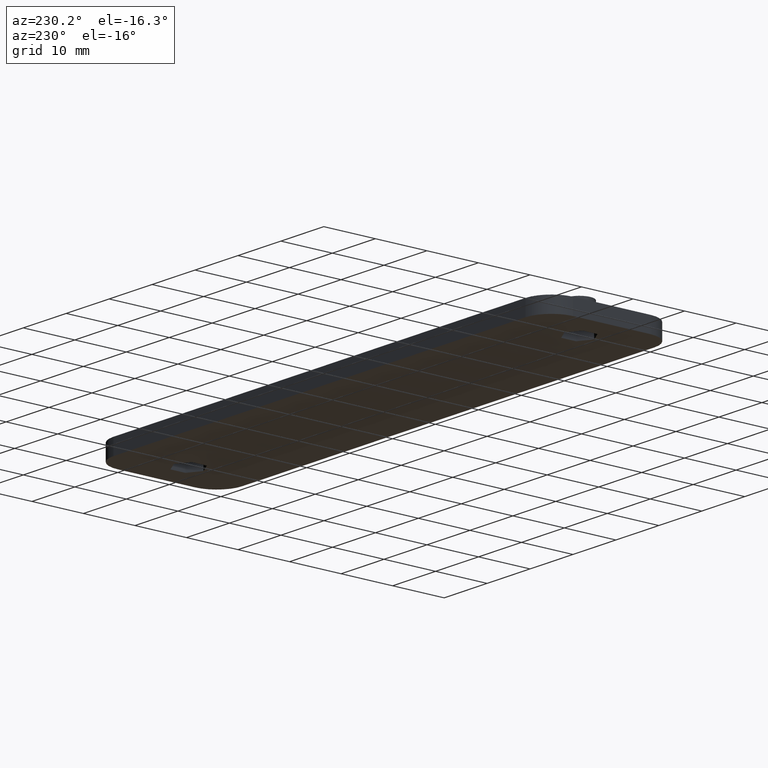
[diagram: clean part render]
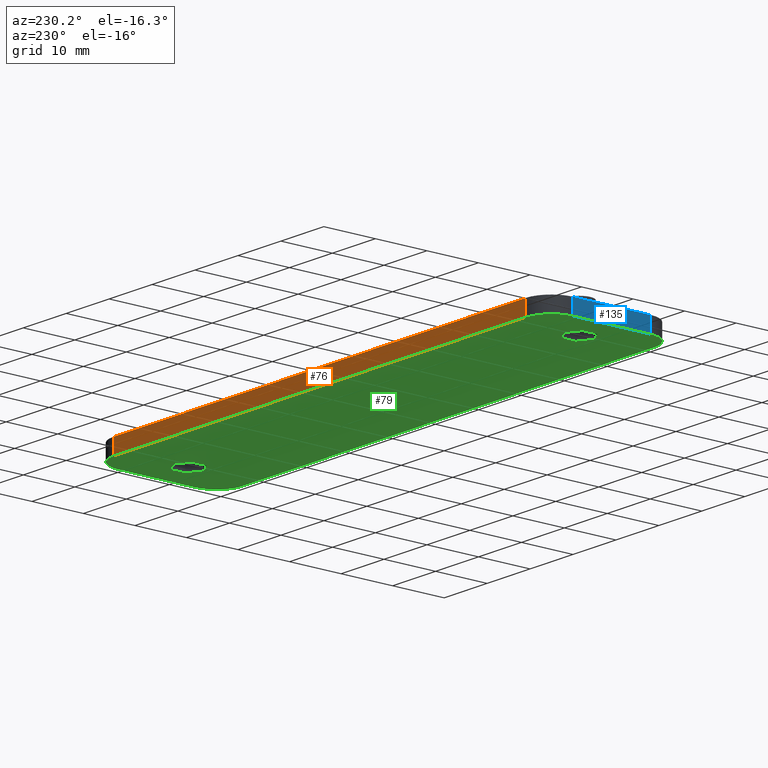
[diagram: same view with three faces highlighted in distinct colors, each labeled with its STEP entity id]
A machine part, auxiliary view with three faces highlighted in distinct colors.
Their STEP definitions:

[orange] entity #76 — the highlighted planar face has unit normal (0, -1, 0).
#76 = ADVANCED_FACE( '', ( #146 ), #147, .F. );
#146 = FACE_OUTER_BOUND( '', #279, .T. );
#147 = PLANE( '', #280 );
#279 = EDGE_LOOP( '', ( #444, #445, #446, #447 ) );
#280 = AXIS2_PLACEMENT_3D( '', #448, #449, #450 );
#444 = ORIENTED_EDGE( '', *, *, #920, .F. );
#445 = ORIENTED_EDGE( '', *, *, #921, .F. );
#446 = ORIENTED_EDGE( '', *, *, #922, .F. );
#447 = ORIENTED_EDGE( '', *, *, #896, .T. );
#448 = CARTESIAN_POINT( '', ( -65.4999999999999, 12.5000000000000, -4.23987423945824E-014 ) );
#449 = DIRECTION( '', ( 7.88860905221011E-031, -1.00000000000000, 6.12303176911189E-017 ) );
#450 = DIRECTION( '', ( -1.00000000000000, -7.88860905221011E-031, 4.83022038407861E-047 ) );
#896 = EDGE_CURVE( '', #1059, #1057, #1060, .T. );
#920 = EDGE_CURVE( '', #1106, #1057, #1107, .T. );
#921 = EDGE_CURVE( '', #1108, #1106, #1109, .T. );
#922 = EDGE_CURVE( '', #1059, #1108, #1110, .T. );
#1057 = VERTEX_POINT( '', #1317 );
#1059 = VERTEX_POINT( '', #1319 );
#1060 = LINE( '', #1320, #1321 );
#1106 = VERTEX_POINT( '', #1384 );
#1107 = LINE( '', #1385, #1386 );
#1108 = VERTEX_POINT( '', #1387 );
#1109 = LINE( '', #1388, #1389 );
#1110 = LINE( '', #1390, #1391 );
#1317 = CARTESIAN_POINT( '', ( 48.0000000000000, 12.5000000000000, 2.99999999999990 ) );
#1319 = CARTESIAN_POINT( '', ( -48.0000000000000, 12.5000000000000, 2.99999999999996 ) );
#1320 = CARTESIAN_POINT( '', ( -65.4999999999999, 12.5000000000000, 2.99999999999996 ) );
#1321 = VECTOR( '', #1676, 1000.00000000000 );
#1384 = CARTESIAN_POINT( '', ( 48.0000000000000, 12.5000000000000, -7.01543180102113E-014 ) );
#1385 = CARTESIAN_POINT( '', ( 48.0000000000000, 12.5000000000000, -92.8338482168494 ) );
#1386 = VECTOR( '', #1712, 1000.00000000000 );
#1387 = CARTESIAN_POINT( '', ( -48.0000000000000, 12.5000000000000, -4.23987423945824E-014 ) );
#1388 = CARTESIAN_POINT( '', ( -65.4999999999999, 12.5000000000000, -4.23987423945824E-014 ) );
#1389 = VECTOR( '', #1713, 1000.00000000000 );
#1390 = CARTESIAN_POINT( '', ( -48.0000000000000, 12.5000000000000, 111.868624669363 ) );
#1391 = VECTOR( '', #1714, 1000.00000000000 );
#1676 = DIRECTION( '', ( 1.00000000000000, -3.15544362088405E-030, 1.93208815363145E-046 ) );
#1712 = DIRECTION( '', ( 1.60751816480225E-016, 1.81794180051289E-016, 1.00000000000000 ) );
#1713 = DIRECTION( '', ( 1.00000000000000, -3.15544362088405E-030, 1.93208815363145E-046 ) );
#1714 = DIRECTION( '', ( 1.60751816480226E-016, -1.81794180051289E-016, -1.00000000000000 ) );

[blue] entity #135 — the highlighted planar face has unit normal (-1, -0, -0).
#135 = ADVANCED_FACE( '', ( #268 ), #269, .T. );
#268 = FACE_OUTER_BOUND( '', #401, .T. );
#269 = PLANE( '', #402 );
#401 = EDGE_LOOP( '', ( #875, #876, #877, #878 ) );
#402 = AXIS2_PLACEMENT_3D( '', #879, #880, #881 );
#875 = ORIENTED_EDGE( '', *, *, #951, .F. );
#876 = ORIENTED_EDGE( '', *, *, #898, .T. );
#877 = ORIENTED_EDGE( '', *, *, #952, .T. );
#878 = ORIENTED_EDGE( '', *, *, #944, .F. );
#879 = CARTESIAN_POINT( '', ( -53.0000000000000, -7.50000000000000, 111.868624669363 ) );
#880 = DIRECTION( '', ( -1.00000000000000, -3.93715391700347E-032, -1.60751816480226E-016 ) );
#881 = DIRECTION( '', ( -1.01477945012568E-032, 1.00000000000000, -1.81794180051289E-016 ) );
#898 = EDGE_CURVE( '', #1063, #1061, #1064, .T. );
#944 = EDGE_CURVE( '', #1150, #1152, #1153, .T. );
#951 = EDGE_CURVE( '', #1063, #1150, #1160, .T. );
#952 = EDGE_CURVE( '', #1061, #1152, #1161, .T. );
#1061 = VERTEX_POINT( '', #1322 );
#1063 = VERTEX_POINT( '', #1324 );
#1064 = LINE( '', #1325, #1326 );
#1150 = VERTEX_POINT( '', #1450 );
#1152 = VERTEX_POINT( '', #1452 );
#1153 = LINE( '', #1453, #1454 );
#1160 = LINE( '', #1465, #1466 );
#1161 = LINE( '', #1467, #1468 );
#1322 = CARTESIAN_POINT( '', ( -53.0000000000000, 7.49999999999999, 2.99999999999996 ) );
#1324 = CARTESIAN_POINT( '', ( -53.0000000000000, -7.50000000000002, 2.99999999999996 ) );
#1325 = CARTESIAN_POINT( '', ( -53.0000000000000, 8.85730833295739E-015, 2.99999999999996 ) );
#1326 = VECTOR( '', #1680, 1000.00000000000 );
#1450 = CARTESIAN_POINT( '', ( -53.0000000000000, -7.50000000000002, -4.11741360407600E-014 ) );
#1452 = CARTESIAN_POINT( '', ( -53.0000000000000, 7.49999999999999, -4.20925908061268E-014 ) );
#1453 = CARTESIAN_POINT( '', ( -53.0000000000000, 8.67361737988403E-015, -4.16333634234434E-014 ) );
#1454 = VECTOR( '', #1740, 1000.00000000000 );
#1465 = CARTESIAN_POINT( '', ( -53.0000000000000, -7.50000000000000, 111.868624669363 ) );
#1466 = VECTOR( '', #1751, 1000.00000000000 );
#1467 = CARTESIAN_POINT( '', ( -53.0000000000000, 7.50000000000001, 111.868624669363 ) );
#1468 = VECTOR( '', #1752, 1000.00000000000 );
#1680 = DIRECTION( '', ( -2.95286543775261E-032, 1.00000000000000, -6.12303176911189E-017 ) );
#1740 = DIRECTION( '', ( -2.95286543775261E-032, 1.00000000000000, -6.12303176911189E-017 ) );
#1751 = DIRECTION( '', ( 1.60751816480226E-016, -1.81794180051289E-016, -1.00000000000000 ) );
#1752 = DIRECTION( '', ( 1.60751816480226E-016, -1.81794180051289E-016, -1.00000000000000 ) );

[green] entity #79 — the highlighted planar face has unit normal (0, -0, -1).
#79 = ADVANCED_FACE( '', ( #152, #153, #154 ), #155, .T. );
#152 = FACE_BOUND( '', #285, .T. );
#153 = FACE_BOUND( '', #286, .T. );
#154 = FACE_OUTER_BOUND( '', #287, .T. );
#155 = PLANE( '', #288 );
#285 = EDGE_LOOP( '', ( #465, #466, #467, #468, #469, #470 ) );
#286 = EDGE_LOOP( '', ( #471, #472, #473, #474, #475, #476 ) );
#287 = EDGE_LOOP( '', ( #477, #478, #479, #480, #481, #482, #483, #484 ) );
#288 = AXIS2_PLACEMENT_3D( '', #485, #486, #487 );
#465 = ORIENTED_EDGE( '', *, *, #928, .F. );
#466 = ORIENTED_EDGE( '', *, *, #929, .F. );
#467 = ORIENTED_EDGE( '', *, *, #930, .F. );
#468 = ORIENTED_EDGE( '', *, *, #931, .F. );
#469 = ORIENTED_EDGE( '', *, *, #932, .F. );
#470 = ORIENTED_EDGE( '', *, *, #933, .F. );
#471 = ORIENTED_EDGE( '', *, *, #934, .F. );
#472 = ORIENTED_EDGE( '', *, *, #935, .F. );
#473 = ORIENTED_EDGE( '', *, *, #936, .F. );
#474 = ORIENTED_EDGE( '', *, *, #937, .F. );
#475 = ORIENTED_EDGE( '', *, *, #938, .F. );
#476 = ORIENTED_EDGE( '', *, *, #939, .F. );
#477 = ORIENTED_EDGE( '', *, *, #940, .T. );
#478 = ORIENTED_EDGE( '', *, *, #941, .T. );
#479 = ORIENTED_EDGE( '', *, *, #942, .T. );
#480 = ORIENTED_EDGE( '', *, *, #943, .T. );
#481 = ORIENTED_EDGE( '', *, *, #944, .T. );
#482 = ORIENTED_EDGE( '', *, *, #945, .T. );
#483 = ORIENTED_EDGE( '', *, *, #921, .T. );
#484 = ORIENTED_EDGE( '', *, *, #946, .T. );
#485 = CARTESIAN_POINT( '', ( 65.5000000000000, 8.67361737988403E-015, -4.16333634234434E-014 ) );
#486 = DIRECTION( '', ( 4.59177480789956E-047, -6.12303176911189E-017, -1.00000000000000 ) );
#487 = DIRECTION( '', ( 5.39030083589187E-015, 1.00000000000000, -6.12303176911189E-017 ) );
#921 = EDGE_CURVE( '', #1108, #1106, #1109, .T. );
#928 = EDGE_CURVE( '', #1119, #1120, #1121, .T. );
#929 = EDGE_CURVE( '', #1122, #1119, #1123, .T. );
#930 = EDGE_CURVE( '', #1124, #1122, #1125, .T. );
#931 = EDGE_CURVE( '', #1126, #1124, #1127, .T. );
#932 = EDGE_CURVE( '', #1128, #1126, #1129, .T. );
#933 = EDGE_CURVE( '', #1120, #1128, #1130, .T. );
#934 = EDGE_CURVE( '', #1131, #1132, #1133, .T. );
#935 = EDGE_CURVE( '', #1134, #1131, #1135, .T. );
#936 = EDGE_CURVE( '', #1136, #1134, #1137, .T. );
#937 = EDGE_CURVE( '', #1138, #1136, #1139, .T. );
#938 = EDGE_CURVE( '', #1140, #1138, #1141, .T. );
#939 = EDGE_CURVE( '', #1132, #1140, #1142, .T. );
#940 = EDGE_CURVE( '', #1143, #1144, #1145, .T. );
#941 = EDGE_CURVE( '', #1144, #1146, #1147, .T. );
#942 = EDGE_CURVE( '', #1146, #1148, #1149, .T. );
#943 = EDGE_CURVE( '', #1148, #1150, #1151, .T. );
#944 = EDGE_CURVE( '', #1150, #1152, #1153, .T. );
#945 = EDGE_CURVE( '', #1152, #1108, #1154, .T. );
#946 = EDGE_CURVE( '', #1106, #1143, #1155, .T. );
#1106 = VERTEX_POINT( '', #1384 );
#1108 = VERTEX_POINT( '', #1387 );
#1109 = LINE( '', #1388, #1389 );
#1119 = VERTEX_POINT( '', #1405 );
#1120 = VERTEX_POINT( '', #1406 );
#1121 = LINE( '', #1407, #1408 );
#1122 = VERTEX_POINT( '', #1409 );
#1123 = LINE( '', #1410, #1411 );
#1124 = VERTEX_POINT( '', #1412 );
#1125 = LINE( '', #1413, #1414 );
#1126 = VERTEX_POINT( '', #1415 );
#1127 = LINE( '', #1416, #1417 );
#1128 = VERTEX_POINT( '', #1418 );
#1129 = LINE( '', #1419, #1420 );
#1130 = LINE( '', #1421, #1422 );
#1131 = VERTEX_POINT( '', #1423 );
#1132 = VERTEX_POINT( '', #1424 );
#1133 = LINE( '', #1425, #1426 );
#1134 = VERTEX_POINT( '', #1427 );
#1135 = LINE( '', #1428, #1429 );
#1136 = VERTEX_POINT( '', #1430 );
#1137 = LINE( '', #1431, #1432 );
#1138 = VERTEX_POINT( '', #1433 );
#1139 = LINE( '', #1434, #1435 );
#1140 = VERTEX_POINT( '', #1436 );
#1141 = LINE( '', #1437, #1438 );
#1142 = LINE( '', #1439, #1440 );
#1143 = VERTEX_POINT( '', #1441 );
#1144 = VERTEX_POINT( '', #1442 );
#1145 = LINE( '', #1443, #1444 );
#1146 = VERTEX_POINT( '', #1445 );
#1147 = CIRCLE( '', #1446, 4.99999999999999 );
#1148 = VERTEX_POINT( '', #1447 );
#1149 = LINE( '', #1448, #1449 );
#1150 = VERTEX_POINT( '', #1450 );
#1151 = CIRCLE( '', #1451, 5.00000000000000 );
#1152 = VERTEX_POINT( '', #1452 );
#1153 = LINE( '', #1453, #1454 );
#1154 = CIRCLE( '', #1455, 5.00000000000000 );
#1155 = CIRCLE( '', #1456, 4.99999999999999 );
#1384 = CARTESIAN_POINT( '', ( 48.0000000000000, 12.5000000000000, -7.01543180102113E-014 ) );
#1387 = CARTESIAN_POINT( '', ( -48.0000000000000, 12.5000000000000, -4.23987423945824E-014 ) );
#1388 = CARTESIAN_POINT( '', ( -65.4999999999999, 12.5000000000000, -4.23987423945824E-014 ) );
#1389 = VECTOR( '', #1713, 1000.00000000000 );
#1405 = CARTESIAN_POINT( '', ( 45.5000000000001, 2.88675134594816, -2.79323323176366E-014 ) );
#1406 = CARTESIAN_POINT( '', ( 48.0000000000001, 1.44337567297410, -2.78439539666328E-014 ) );
#1407 = CARTESIAN_POINT( '', ( 50.5000000000002, 1.40946282423116E-014, -2.77555756156289E-014 ) );
#1408 = VECTOR( '', #1720, 1000.00000000000 );
#1409 = CARTESIAN_POINT( '', ( 43.0000000000001, 1.44337567297408, -2.78439539666328E-014 ) );
#1410 = CARTESIAN_POINT( '', ( 48.0000000000001, 4.33012701892223, -2.80207106686404E-014 ) );
#1411 = VECTOR( '', #1721, 1000.00000000000 );
#1412 = CARTESIAN_POINT( '', ( 43.0000000000001, -1.44337567297407, -2.76671972646251E-014 ) );
#1413 = CARTESIAN_POINT( '', ( 43.0000000000001, 1.36782946080771E-014, -2.77555756156289E-014 ) );
#1414 = VECTOR( '', #1722, 1000.00000000000 );
#1415 = CARTESIAN_POINT( '', ( 45.5000000000001, -2.88675134594813, -2.75788189136212E-014 ) );
#1416 = CARTESIAN_POINT( '', ( 48.0000000000001, -4.33012701892221, -2.74904405626174E-014 ) );
#1417 = VECTOR( '', #1723, 1000.00000000000 );
#1418 = CARTESIAN_POINT( '', ( 48.0000000000001, -1.44337567297406, -2.76671972646251E-014 ) );
#1419 = CARTESIAN_POINT( '', ( 50.5000000000001, 2.01048020158368E-014, -2.77555756156289E-014 ) );
#1420 = VECTOR( '', #1724, 1000.00000000000 );
#1421 = CARTESIAN_POINT( '', ( 48.0000000000001, 1.34007388519208E-014, -2.77555756156289E-014 ) );
#1422 = VECTOR( '', #1725, 1000.00000000000 );
#1423 = CARTESIAN_POINT( '', ( -45.5000000000001, 2.88675134594813, -2.79323323176366E-014 ) );
#1424 = CARTESIAN_POINT( '', ( -43.0000000000001, 1.44337567297406, -2.78439539666328E-014 ) );
#1425 = CARTESIAN_POINT( '', ( -40.5000000000001, -1.32699719143736E-014, -2.77555756156289E-014 ) );
#1426 = VECTOR( '', #1726, 1000.00000000000 );
#1427 = CARTESIAN_POINT( '', ( -48.0000000000001, 1.44337567297405, -2.78439539666327E-014 ) );
#1428 = CARTESIAN_POINT( '', ( -43.0000000000001, 4.33012701892220, -2.80207106686404E-014 ) );
#1429 = VECTOR( '', #1727, 1000.00000000000 );
#1430 = CARTESIAN_POINT( '', ( -48.0000000000001, -1.44337567297409, -2.76671972646251E-014 ) );
#1431 = CARTESIAN_POINT( '', ( -48.0000000000001, -1.25593979660721E-014, -2.77555756156289E-014 ) );
#1432 = VECTOR( '', #1728, 1000.00000000000 );
#1433 = CARTESIAN_POINT( '', ( -45.5000000000001, -2.88675134594816, -2.75788189136212E-014 ) );
#1434 = CARTESIAN_POINT( '', ( -43.0000000000001, -4.33012701892223, -2.74904405626174E-014 ) );
#1435 = VECTOR( '', #1729, 1000.00000000000 );
#1436 = CARTESIAN_POINT( '', ( -43.0000000000001, -1.44337567297409, -2.76671972646251E-014 ) );
#1437 = CARTESIAN_POINT( '', ( -40.5000000000001, -1.11100657145130E-014, -2.77555756156289E-014 ) );
#1438 = VECTOR( '', #1730, 1000.00000000000 );
#1439 = CARTESIAN_POINT( '', ( -43.0000000000001, -1.28369537222284E-014, -2.77555756156289E-014 ) );
#1440 = VECTOR( '', #1731, 1000.00000000000 );
#1441 = CARTESIAN_POINT( '', ( 53.0000000000000, 7.49999999999999, -6.98481664217557E-014 ) );
#1442 = CARTESIAN_POINT( '', ( 53.0000000000000, -7.50000000000001, -6.89297116563889E-014 ) );
#1443 = CARTESIAN_POINT( '', ( 53.0000000000000, 8.67361737988401E-015, -4.16333634234434E-014 ) );
#1444 = VECTOR( '', #1732, 1000.00000000000 );
#1445 = CARTESIAN_POINT( '', ( 48.0000000000000, -12.5000000000000, -9.63791356835622E-014 ) );
#1446 = AXIS2_PLACEMENT_3D( '', #1733, #1734, #1735 );
#1447 = CARTESIAN_POINT( '', ( -48.0000000000000, -12.5000000000000, -4.08679844523044E-014 ) );
#1448 = CARTESIAN_POINT( '', ( 65.5000000000001, -12.5000000000000, -4.08679844523044E-014 ) );
#1449 = VECTOR( '', #1736, 1000.00000000000 );
#1450 = CARTESIAN_POINT( '', ( -53.0000000000000, -7.50000000000002, -4.11741360407600E-014 ) );
#1451 = AXIS2_PLACEMENT_3D( '', #1737, #1738, #1739 );
#1452 = CARTESIAN_POINT( '', ( -53.0000000000000, 7.49999999999999, -4.20925908061268E-014 ) );
#1453 = CARTESIAN_POINT( '', ( -53.0000000000000, 8.67361737988403E-015, -4.16333634234434E-014 ) );
#1454 = VECTOR( '', #1740, 1000.00000000000 );
#1455 = AXIS2_PLACEMENT_3D( '', #1741, #1742, #1743 );
#1456 = AXIS2_PLACEMENT_3D( '', #1744, #1745, #1746 );
#1713 = DIRECTION( '', ( 1.00000000000000, -3.15544362088405E-030, 1.93208815363145E-046 ) );
#1720 = DIRECTION( '', ( 0.866025403784438, -0.500000000000001, 3.06151588455595E-017 ) );
#1721 = DIRECTION( '', ( 0.866025403784438, 0.500000000000001, -3.06151588455595E-017 ) );
#1722 = DIRECTION( '', ( -5.55111512312578E-017, 1.00000000000000, -6.12303176911189E-017 ) );
#1723 = DIRECTION( '', ( -0.866025403784438, 0.500000000000001, -3.06151588455595E-017 ) );
#1724 = DIRECTION( '', ( -0.866025403784438, -0.500000000000001, 3.06151588455595E-017 ) );
#1725 = DIRECTION( '', ( 2.77555756156289E-016, -1.00000000000000, 6.12303176911189E-017 ) );
#1726 = DIRECTION( '', ( 0.866025403784438, -0.500000000000001, 3.06151588455595E-017 ) );
#1727 = DIRECTION( '', ( 0.866025403784438, 0.500000000000001, -3.06151588455595E-017 ) );
#1728 = DIRECTION( '', ( -5.55111512312578E-017, 1.00000000000000, -6.12303176911189E-017 ) );
#1729 = DIRECTION( '', ( -0.866025403784438, 0.500000000000001, -3.06151588455595E-017 ) );
#1730 = DIRECTION( '', ( -0.866025403784438, -0.500000000000001, 3.06151588455595E-017 ) );
#1731 = DIRECTION( '', ( 2.77555756156289E-016, -1.00000000000000, 6.12303176911189E-017 ) );
#1732 = DIRECTION( '', ( 1.57772181044202E-030, -1.00000000000000, 6.12303176911189E-017 ) );
#1733 = CARTESIAN_POINT( '', ( 48.0000000000000, -7.50000000000001, -4.11741360407600E-014 ) );
#1734 = DIRECTION( '', ( 0.000000000000000, -6.12303176911189E-017, -1.00000000000000 ) );
#1735 = DIRECTION( '', ( 0.000000000000000, 1.00000000000000, -6.12303176911189E-017 ) );
#1736 = DIRECTION( '', ( -1.00000000000000, 2.36658271566303E-030, -1.44906611522358E-046 ) );
#1737 = CARTESIAN_POINT( '', ( -48.0000000000000, -7.50000000000002, -4.11741360407600E-014 ) );
#1738 = DIRECTION( '', ( 0.000000000000000, -6.12303176911189E-017, -1.00000000000000 ) );
#1739 = DIRECTION( '', ( 0.000000000000000, 1.00000000000000, -6.12303176911189E-017 ) );
#1740 = DIRECTION( '', ( -2.95286543775261E-032, 1.00000000000000, -6.12303176911189E-017 ) );
#1741 = CARTESIAN_POINT( '', ( -48.0000000000000, 7.49999999999999, -4.20925908061268E-014 ) );
#1742 = DIRECTION( '', ( 0.000000000000000, -6.12303176911189E-017, -1.00000000000000 ) );
#1743 = DIRECTION( '', ( 0.000000000000000, 1.00000000000000, -6.12303176911189E-017 ) );
#1744 = CARTESIAN_POINT( '', ( 48.0000000000000, 7.49999999999999, -4.20925908061268E-014 ) );
#1745 = DIRECTION( '', ( 0.000000000000000, -6.12303176911189E-017, -1.00000000000000 ) );
#1746 = DIRECTION( '', ( 0.000000000000000, 1.00000000000000, -6.12303176911189E-017 ) );